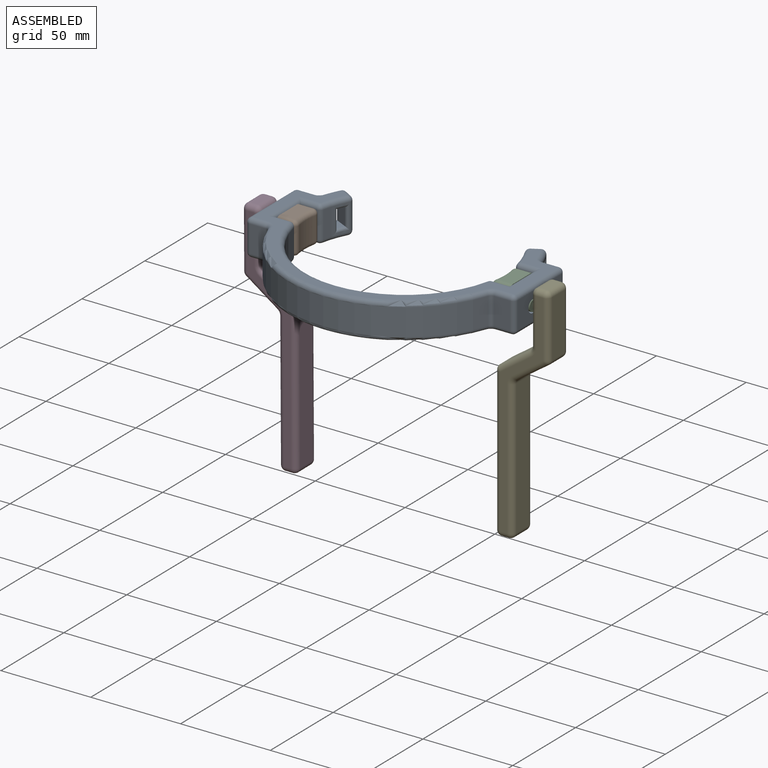
[diagram: assembled view]
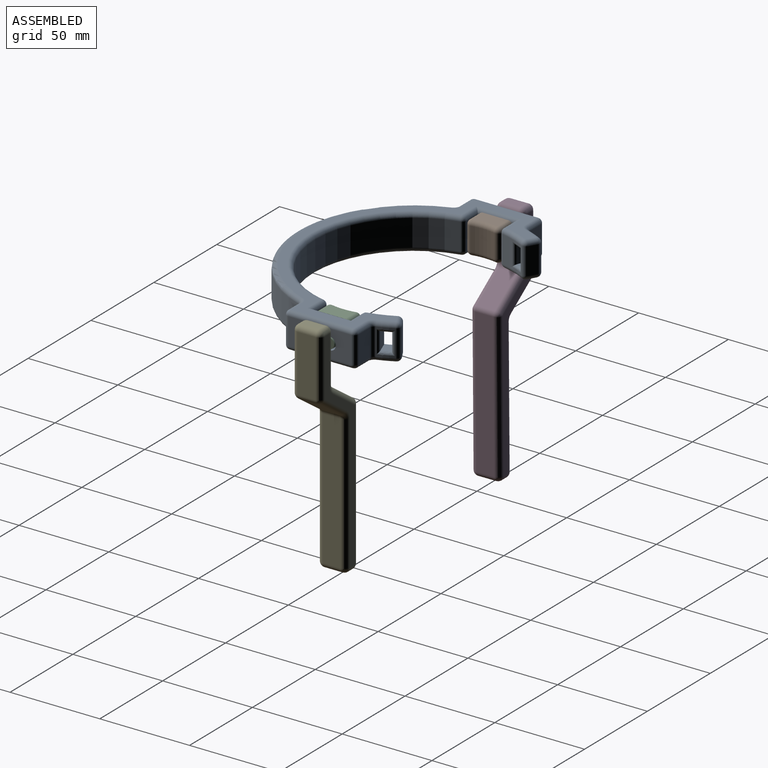
[diagram: assembled view, second angle]
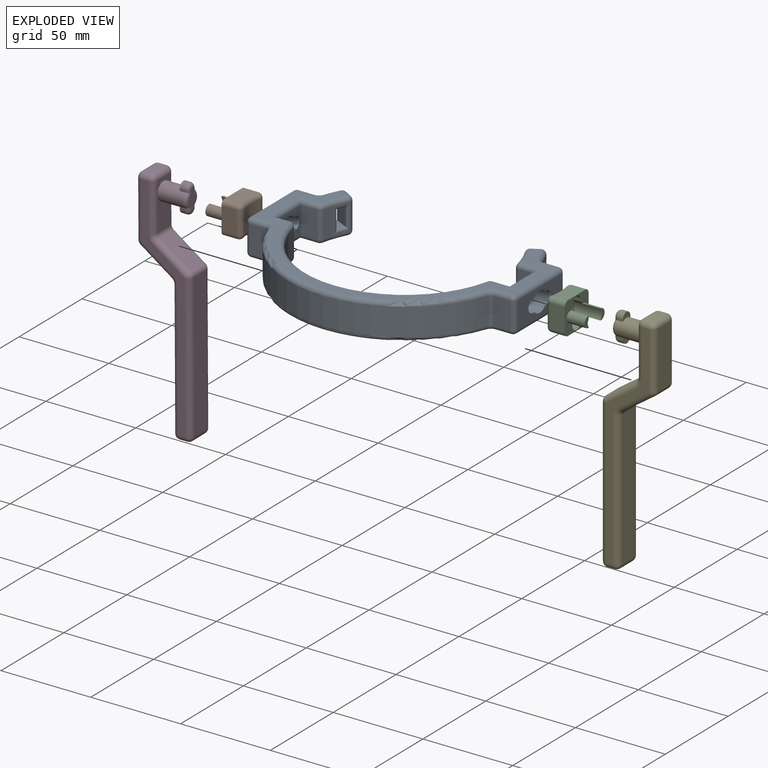
[diagram: exploded view]
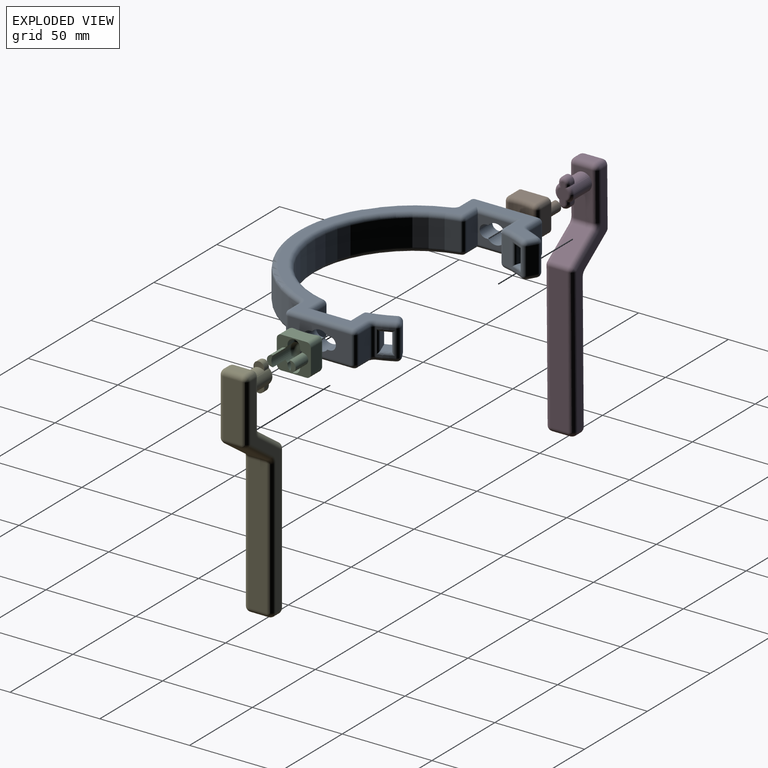
[diagram: exploded view, second angle]
ASSEMBLY  parts=5 mates=4
PART A: 150 faces, bbox 150x20x101.9 mm
  f0: cylinder r=55mm len=15mm, axis (0,-1,0), area 115.1mm2, adj f43,f44,f54,f55,f75,f76,f78
  f1: plane 15x8.86mm, normal (0,0,-1), area 132.9mm2, adj f57,f58,f66,f67
  f2: cylinder r=55mm len=107.37mm, axis (0,-1,0), area 2230.2mm2, adj f25,f28,f29,f102
  f3: plane 145x91.56mm, normal (0,1,0), area 1476.3mm2, adj f25,f27,f30,f31,f33,f34,f38,f43
  f4: plane 145x91.56mm, normal (0,-1,0), area 1476.3mm2, adj f29,f35,f36,f40,f41,f45,f46,f55
  f5: cylinder r=65mm len=122.57mm, axis (0,-1,0), area 2400.4mm2, adj f30,f36,f37,f108
  f6: plane 15x8.86mm, normal (0,0,1), area 132.9mm2, adj f37,f38,f46,f47
  f7: plane 15x8.88mm, normal (0,0,-1), area 133.1mm2, adj f8,f27,f28,f35
  f8: plane 20x15mm, normal (-1,0,0), area 160.9mm2, adj f7,f9,f11,f12,f13,f14,f15,f16
  f9: plane 15x8.88mm, normal (0,0,1), area 133.1mm2, adj f8,f34,f44,f45
  f10: plane 35x15mm, normal (1,0,0), area 385.9mm2, adj f11,f12,f13,f14,f15,f16,f17,f18
  f11: plane 10x1.26mm, normal (0,-1,0), area 12.6mm2, adj f8,f10,f12,f18
  f12: cylinder r=5.5mm len=10mm, axis (1,0,0), area 96.9mm2, adj f8,f10,f11,f13
  f13: plane 10x1.26mm, normal (0,-1,0), area 12.6mm2, adj f8,f10,f12,f14
  f14: cylinder r=3.5mm len=10mm, axis (1,0,0), area 110mm2, adj f8,f10,f13,f15
  f15: plane 10x1.26mm, normal (0,1,0), area 12.6mm2, adj f8,f10,f14,f16
  f16: cylinder r=5.5mm len=10mm, axis (1,0,0), area 96.9mm2, adj f8,f10,f15,f17
  f17: plane 10x1.26mm, normal (0,1,0), area 12.6mm2, adj f8,f10,f16,f18
  f18: cylinder r=3.5mm len=10mm, axis (1,0,0), area 110mm2, adj f8,f10,f11,f17
  f19: plane 15x4.33mm, normal (-0.5,0,-0.87), area 75.1mm2, adj f53,f54,f64,f65
  f20: cylinder r=65mm len=15mm, axis (0,-1,0), area 26.5mm2, adj f59,f64,f67,f70,f71,f72,f73,f74
  f21: plane 8.5x7.59mm, normal (0,-1,0), area 36.7mm2, adj f23,f24,f72,f73,f74,f78
  f22: plane 8.5x7.59mm, normal (0,1,0), area 36.7mm2, adj f23,f24,f71,f72,f73,f75
  f23: plane 10x6.54mm, normal (-0.36,0,-0.93), area 70mm2, adj f21,f22,f72,f75,f76,f78
  f24: plane 10x6.29mm, normal (0.44,0,0.9), area 70mm2, adj f21,f22,f73,f75,f77,f78
  f25: torus R=57.5mm, axis (0,-1,0), area 593.5mm2, adj f2,f3,f26,f100
  f26: sphere r=2.5mm, area 8.4mm2, adj f25,f27,f28
  f27: cylinder r=2.5mm len=11.38mm, axis (-1,0,0), area 38.4mm2, adj f3,f7,f26,f31
  f28: cylinder r=2.5mm len=15mm, axis (0,-1,0), area 50.7mm2, adj f2,f7,f26,f32
  f29: torus R=57.5mm, axis (0,-1,0), area 593.5mm2, adj f2,f4,f32,f104
  f30: torus R=62.5mm, axis (0,-1,0), area 619.6mm2, adj f3,f5,f33,f105
  f31: cylinder r=2.5mm len=25mm, axis (0,0,1), area 85.7mm2, adj f3,f8,f27,f34
  f32: sphere r=2.5mm, area 8.4mm2, adj f28,f29,f35
  f33: torus R=5mm, axis (0,-1,0), area 16.5mm2, adj f3,f30,f37,f38
  f34: cylinder r=2.5mm len=11.38mm, axis (1,0,0), area 38.4mm2, adj f3,f9,f31,f39
  f35: cylinder r=2.5mm len=11.38mm, axis (1,0,0), area 38.4mm2, adj f4,f7,f32,f40
  f36: torus R=62.5mm, axis (0,-1,0), area 619.6mm2, adj f4,f5,f41,f112
  f37: cylinder r=2.5mm len=15mm, axis (0,-1,0), area 46.2mm2, adj f5,f6,f33,f41
  f38: cylinder r=2.5mm len=8.86mm, axis (1,0,0), area 34.8mm2, adj f3,f6,f33,f42
  f39: sphere r=2.5mm, area 8.4mm2, adj f34,f43,f44
  f40: cylinder r=2.5mm len=25mm, axis (0,0,-1), area 85.7mm2, adj f4,f8,f35,f45
  f41: torus R=5mm, axis (0,-1,0), area 16.5mm2, adj f4,f36,f37,f46
  f42: sphere r=2.5mm, area 9.8mm2, adj f38,f47,f48
  f43: torus R=57.5mm, axis (0,-1,0), area 57.3mm2, adj f0,f3,f39,f49
  f44: cylinder r=2.5mm len=15mm, axis (0,-1,0), area 50.7mm2, adj f0,f9,f39,f50
  f45: cylinder r=2.5mm len=11.38mm, axis (-1,0,0), area 38.4mm2, adj f4,f9,f40,f50
  f46: cylinder r=2.5mm len=8.86mm, axis (-1,0,0), area 34.8mm2, adj f4,f6,f41,f51
  f47: cylinder r=2.5mm len=15mm, axis (0,-1,0), area 58.9mm2, adj f6,f10,f42,f51
  f48: cylinder r=2.5mm len=35mm, axis (0,0,-1), area 137.4mm2, adj f3,f10,f42,f52
  f49: sphere r=2.5mm, area 9.5mm2, adj f43,f53,f54
  f50: sphere r=2.5mm, area 8.4mm2, adj f44,f45,f55
  f51: sphere r=2.5mm, area 9.8mm2, adj f46,f47,f56
  f52: sphere r=2.5mm, area 9.8mm2, adj f48,f57,f58
  f53: cylinder r=2.5mm len=5.58mm, axis (-0.87,0,0.5), area 19.7mm2, adj f3,f19,f49,f60
  f54: cylinder r=2.5mm len=15mm, axis (0,-1,0), area 57.2mm2, adj f0,f19,f49,f61,f75,f77,f78
  f55: torus R=57.5mm, axis (0,-1,0), area 57.3mm2, adj f0,f4,f50,f61
  f56: cylinder r=2.5mm len=35mm, axis (0,0,1), area 137.4mm2, adj f4,f10,f51,f62
  f57: cylinder r=2.5mm len=15mm, axis (0,1,0), area 58.9mm2, adj f1,f10,f52,f62
  f58: cylinder r=2.5mm len=8.86mm, axis (-1,0,0), area 34.8mm2, adj f1,f3,f52,f63
  f59: torus R=62.5mm, axis (0,-1,0), area 36.2mm2, adj f3,f20,f60,f63
  f60: sphere r=2.5mm, area 10.1mm2, adj f53,f59,f64
  f61: sphere r=2.5mm, area 9.5mm2, adj f54,f55,f65
  f62: sphere r=2.5mm, area 9.8mm2, adj f56,f57,f66
  f63: torus R=5mm, axis (0,-1,0), area 16.5mm2, adj f3,f58,f59,f67
  f64: cylinder r=2.5mm len=15mm, axis (0,-1,0), area 60.4mm2, adj f19,f20,f60,f68
  f65: cylinder r=2.5mm len=5.58mm, axis (0.87,0,-0.5), area 19.7mm2, adj f4,f19,f61,f68
  f66: cylinder r=2.5mm len=8.86mm, axis (1,0,0), area 34.8mm2, adj f1,f4,f62,f69
  f67: cylinder r=2.5mm len=15mm, axis (0,-1,0), area 46.2mm2, adj f1,f20,f63,f69
  f68: sphere r=2.5mm, area 10.1mm2, adj f64,f65,f70
  f69: torus R=5mm, axis (0,-1,0), area 16.5mm2, adj f4,f66,f67,f70
  f70: torus R=62.5mm, axis (0,-1,0), area 36.2mm2, adj f4,f20,f68,f69
  f71: torus R=63.5mm, axis (0,-1,0), area 15.9mm2, adj f20,f22,f72,f73
  f72: cylinder r=1.5mm len=13mm, axis (0,-1,0), area 26.5mm2, adj f20,f21,f22,f23,f71,f74
  f73: cylinder r=1.5mm len=13mm, axis (0,-1,0), area 26.5mm2, adj f20,f21,f22,f24,f71,f74
  f74: torus R=63.5mm, axis (0,-1,0), area 15.9mm2, adj f20,f21,f72,f73
  f75: torus R=56.5mm, axis (0,-1,0), area 13.9mm2, adj f0,f22,f23,f24,f54,f76,f77
  f76: cylinder r=1.5mm len=13mm, axis (0,-1,0), area 25.7mm2, adj f0,f23,f75,f78
  f77: cylinder r=1.5mm len=12.99mm, axis (0,-1,0), area 25.6mm2, adj f24,f54,f75,f78
  f78: torus R=56.5mm, axis (0,-1,0), area 13.9mm2, adj f0,f21,f23,f24,f54,f76,f77
  f79: cylinder r=55mm len=15mm, axis (0,-1,0), area 115.1mm2, adj f114,f115,f125,f126,f146,f147,f149
  f80: plane 15x8.86mm, normal (0,0,-1), area 132.9mm2, adj f128,f129,f137,f138
  f81: plane 15x8.86mm, normal (0,0,1), area 132.9mm2, adj f108,f109,f117,f118
  f82: plane 15x8.88mm, normal (0,0,-1), area 133.1mm2, adj f83,f101,f102,f107
  f83: plane 20x15mm, normal (1,0,0), area 160.9mm2, adj f82,f84,f86,f87,f88,f89,f90,f91
  f84: plane 15x8.88mm, normal (0,0,1), area 133.1mm2, adj f83,f106,f115,f116
  f85: plane 35x15mm, normal (-1,0,0), area 385.9mm2, adj f86,f87,f88,f89,f90,f91,f92,f93
  f86: plane 10x1.26mm, normal (0,-1,0), area 12.6mm2, adj f83,f85,f87,f93
  f87: cylinder r=5.5mm len=10mm, axis (-1,0,0), area 96.9mm2, adj f83,f85,f86,f88
  f88: plane 10x1.26mm, normal (0,-1,0), area 12.6mm2, adj f83,f85,f87,f89
  f89: cylinder r=3.5mm len=10mm, axis (-1,0,0), area 110mm2, adj f83,f85,f88,f90
  f90: plane 10x1.26mm, normal (0,1,0), area 12.6mm2, adj f83,f85,f89,f91
  f91: cylinder r=5.5mm len=10mm, axis (-1,0,0), area 96.9mm2, adj f83,f85,f90,f92
  f92: plane 10x1.26mm, normal (0,1,0), area 12.6mm2, adj f83,f85,f91,f93
  f93: cylinder r=3.5mm len=10mm, axis (-1,0,0), area 110mm2, adj f83,f85,f86,f92
  f94: plane 15x4.33mm, normal (0.5,0,-0.87), area 75.1mm2, adj f124,f125,f135,f136
  f95: cylinder r=65mm len=15mm, axis (0,-1,0), area 26.5mm2, adj f130,f135,f138,f141,f142,f143,f144,f145
  f96: plane 8.5x7.59mm, normal (0,-1,0), area 36.7mm2, adj f98,f99,f143,f144,f145,f149
  f97: plane 8.5x7.59mm, normal (0,1,0), area 36.7mm2, adj f98,f99,f142,f143,f144,f146
  f98: plane 10x6.54mm, normal (0.36,0,-0.93), area 70mm2, adj f96,f97,f143,f146,f147,f149
  f99: plane 10x6.29mm, normal (-0.44,0,0.9), area 70mm2, adj f96,f97,f144,f146,f148,f149
  f100: sphere r=2.5mm, area 8.4mm2, adj f25,f101,f102
  f101: cylinder r=2.5mm len=11.38mm, axis (1,0,0), area 38.4mm2, adj f3,f82,f100,f103
  f102: cylinder r=2.5mm len=15mm, axis (0,-1,0), area 50.7mm2, adj f2,f82,f100,f104
  f103: cylinder r=2.5mm len=25mm, axis (0,0,1), area 85.7mm2, adj f3,f83,f101,f106
  f104: sphere r=2.5mm, area 8.4mm2, adj f29,f102,f107
  f105: torus R=5mm, axis (0,-1,0), area 16.5mm2, adj f3,f30,f108,f109
  f106: cylinder r=2.5mm len=11.38mm, axis (-1,0,0), area 38.4mm2, adj f3,f84,f103,f110
  f107: cylinder r=2.5mm len=11.38mm, axis (-1,0,0), area 38.4mm2, adj f4,f82,f104,f111
  f108: cylinder r=2.5mm len=15mm, axis (0,-1,0), area 46.2mm2, adj f5,f81,f105,f112
  f109: cylinder r=2.5mm len=8.86mm, axis (-1,0,0), area 34.8mm2, adj f3,f81,f105,f113
  f110: sphere r=2.5mm, area 8.4mm2, adj f106,f114,f115
  f111: cylinder r=2.5mm len=25mm, axis (0,0,-1), area 85.7mm2, adj f4,f83,f107,f116
  f112: torus R=5mm, axis (0,-1,0), area 16.5mm2, adj f4,f36,f108,f117
  f113: sphere r=2.5mm, area 9.8mm2, adj f109,f118,f119
  f114: torus R=57.5mm, axis (0,-1,0), area 57.3mm2, adj f3,f79,f110,f120
  f115: cylinder r=2.5mm len=15mm, axis (0,-1,0), area 50.7mm2, adj f79,f84,f110,f121
  f116: cylinder r=2.5mm len=11.38mm, axis (1,0,0), area 38.4mm2, adj f4,f84,f111,f121
  f117: cylinder r=2.5mm len=8.86mm, axis (1,0,0), area 34.8mm2, adj f4,f81,f112,f122
  f118: cylinder r=2.5mm len=15mm, axis (0,-1,0), area 58.9mm2, adj f81,f85,f113,f122
  f119: cylinder r=2.5mm len=35mm, axis (0,0,-1), area 137.4mm2, adj f3,f85,f113,f123
  f120: sphere r=2.5mm, area 9.5mm2, adj f114,f124,f125
  f121: sphere r=2.5mm, area 8.4mm2, adj f115,f116,f126
  f122: sphere r=2.5mm, area 9.8mm2, adj f117,f118,f127
  f123: sphere r=2.5mm, area 9.8mm2, adj f119,f128,f129
  f124: cylinder r=2.5mm len=5.58mm, axis (0.87,0,0.5), area 19.7mm2, adj f3,f94,f120,f131
  f125: cylinder r=2.5mm len=15mm, axis (0,-1,0), area 57.2mm2, adj f79,f94,f120,f132,f146,f148,f149
  f126: torus R=57.5mm, axis (0,-1,0), area 57.3mm2, adj f4,f79,f121,f132
  f127: cylinder r=2.5mm len=35mm, axis (0,0,1), area 137.4mm2, adj f4,f85,f122,f133
  f128: cylinder r=2.5mm len=15mm, axis (0,1,0), area 58.9mm2, adj f80,f85,f123,f133
  f129: cylinder r=2.5mm len=8.86mm, axis (1,0,0), area 34.8mm2, adj f3,f80,f123,f134
  f130: torus R=62.5mm, axis (0,-1,0), area 36.2mm2, adj f3,f95,f131,f134
  f131: sphere r=2.5mm, area 10.1mm2, adj f124,f130,f135
  f132: sphere r=2.5mm, area 9.5mm2, adj f125,f126,f136
  f133: sphere r=2.5mm, area 9.8mm2, adj f127,f128,f137
  f134: torus R=5mm, axis (0,-1,0), area 16.5mm2, adj f3,f129,f130,f138
  f135: cylinder r=2.5mm len=15mm, axis (0,-1,0), area 60.4mm2, adj f94,f95,f131,f139
  f136: cylinder r=2.5mm len=5.58mm, axis (-0.87,0,-0.5), area 19.7mm2, adj f4,f94,f132,f139
  f137: cylinder r=2.5mm len=8.86mm, axis (-1,0,0), area 34.8mm2, adj f4,f80,f133,f140
  f138: cylinder r=2.5mm len=15mm, axis (0,-1,0), area 46.2mm2, adj f80,f95,f134,f140
  f139: sphere r=2.5mm, area 10.1mm2, adj f135,f136,f141
  f140: torus R=5mm, axis (0,-1,0), area 16.5mm2, adj f4,f137,f138,f141
  f141: torus R=62.5mm, axis (0,-1,0), area 36.2mm2, adj f4,f95,f139,f140
  f142: torus R=63.5mm, axis (0,-1,0), area 15.9mm2, adj f95,f97,f143,f144
  f143: cylinder r=1.5mm len=13mm, axis (0,-1,0), area 26.5mm2, adj f95,f96,f97,f98,f142,f145
  f144: cylinder r=1.5mm len=13mm, axis (0,-1,0), area 26.5mm2, adj f95,f96,f97,f99,f142,f145
  f145: torus R=63.5mm, axis (0,-1,0), area 15.9mm2, adj f95,f96,f143,f144
  f146: torus R=56.5mm, axis (0,-1,0), area 13.9mm2, adj f79,f97,f98,f99,f125,f147,f148
  f147: cylinder r=1.5mm len=13mm, axis (0,-1,0), area 25.7mm2, adj f79,f98,f146,f149
  f148: cylinder r=1.5mm len=12.99mm, axis (0,-1,0), area 25.6mm2, adj f99,f125,f146,f149
  f149: torus R=56.5mm, axis (0,-1,0), area 13.9mm2, adj f79,f96,f98,f99,f125,f147,f148
PART B: 43 faces, bbox 20.7x19x18 mm
  f0: plane 19x18mm, normal (-1,0,0), area 178.8mm2, adj f1,f2,f3,f4,f5,f6,f7,f8
  f1: plane 14x8.18mm, normal (0,0,-1), area 108.2mm2, adj f0,f28,f31,f34
  f2: plane 14x8.18mm, normal (0,0,1), area 108.2mm2, adj f0,f23,f24,f25
  f3: plane 13x8.18mm, normal (0,-1,0), area 106.3mm2, adj f0,f23,f28,f29
  f4: plane 13x8.18mm, normal (0,1,0), area 106.3mm2, adj f0,f25,f30,f31
  f5: plane 4.5x0.76mm, normal (0,-1,0), area 3.4mm2, adj f0,f6,f12,f39
  f6: cylinder r=5.5mm len=14.5mm, axis (-1,0,0), area 107.1mm2, adj f0,f5,f7,f14,f15,f17,f41
  f7: plane 4.5x0.76mm, normal (0,-1,0), area 3.4mm2, adj f0,f6,f8,f42
  f8: cylinder r=3.5mm len=7mm, axis (-1,0,0), area 49.5mm2, adj f0,f7,f9,f40
  f9: plane 4.5x0.76mm, normal (0,1,0), area 3.4mm2, adj f0,f8,f10,f38
  f10: cylinder r=5.5mm len=14.5mm, axis (-1,0,0), area 107.1mm2, adj f0,f9,f11,f19,f20,f21,f36
  f11: plane 4.5x0.76mm, normal (0,1,0), area 3.4mm2, adj f0,f10,f12,f35
  f12: cylinder r=3.5mm len=7mm, axis (-1,0,0), area 49.5mm2, adj f0,f5,f11,f37
  f13: plane 12x6mm, normal (-1,0,0), area 39.6mm2, adj f35,f36,f37,f38,f39,f40,f41,f42
  f14: plane 10x0.39mm, normal (0,0,-1), area 3.9mm2, adj f0,f6,f16,f17
  f15: plane 10x0.39mm, normal (0,0,1), area 3.9mm2, adj f0,f6,f16,f17
  f16: cylinder r=3mm len=10mm, axis (1,0,0), area 94.2mm2, adj f0,f14,f15,f17
  f17: plane 6x3.39mm, normal (-1,0,0), area 12.9mm2, adj f6,f14,f15,f16
  f18: cylinder r=3mm len=10mm, axis (1,0,0), area 94.2mm2, adj f0,f19,f20,f21
  f19: plane 10x0.39mm, normal (0,0,1), area 3.9mm2, adj f0,f10,f18,f21
  f20: plane 10x0.39mm, normal (0,0,-1), area 3.9mm2, adj f0,f10,f18,f21
  f21: plane 6x3.39mm, normal (-1,0,0), area 12.9mm2, adj f10,f18,f19,f20
  f22: cylinder r=33.99mm len=13.04mm, axis (0,0,1), area 170.6mm2, adj f24,f29,f30,f34
  f23: cylinder r=2.5mm len=8.18mm, axis (1,0,0), area 32.1mm2, adj f0,f2,f3,f26
  f24: torus R=36.49mm, axis (0,0,-1), area 52.9mm2, adj f2,f22,f26,f27
  f25: cylinder r=2.5mm len=8.18mm, axis (-1,0,0), area 32.1mm2, adj f0,f2,f4,f27
  f26: sphere r=2.5mm, area 11mm2, adj f23,f24,f29
  f27: sphere r=2.5mm, area 11mm2, adj f24,f25,f30
  f28: cylinder r=2.5mm len=8.18mm, axis (-1,0,0), area 32.1mm2, adj f0,f1,f3,f32
  f29: cylinder r=2.5mm len=13mm, axis (0,0,1), area 57.3mm2, adj f3,f22,f26,f32
  f30: cylinder r=2.5mm len=13mm, axis (0,0,1), area 57.3mm2, adj f4,f22,f27,f33
  f31: cylinder r=2.5mm len=8.18mm, axis (1,0,0), area 32.1mm2, adj f0,f1,f4,f33
  f32: sphere r=2.5mm, area 11mm2, adj f28,f29,f34
  f33: sphere r=2.5mm, area 11mm2, adj f30,f31,f34
  f34: torus R=36.49mm, axis (0,0,-1), area 52.9mm2, adj f1,f22,f32,f33
  f35: cylinder r=2.5mm len=2.5mm, axis (0,0,1), area 4.8mm2, adj f11,f13,f36,f37
  f36: torus R=3mm, axis (-1,0,0), area 34.9mm2, adj f10,f13,f35,f38
  f37: torus R=1mm, axis (-1,0,0), area 32mm2, adj f12,f13,f35,f39
  f38: cylinder r=2.5mm len=2.5mm, axis (0,0,1), area 4.8mm2, adj f9,f13,f36,f40
  f39: cylinder r=2.5mm len=2.5mm, axis (0,0,-1), area 4.8mm2, adj f5,f13,f37,f41
  f40: torus R=1mm, axis (-1,0,0), area 32mm2, adj f8,f13,f38,f42
  f41: torus R=3mm, axis (-1,0,0), area 34.9mm2, adj f6,f13,f39,f42
  f42: cylinder r=2.5mm len=2.5mm, axis (0,0,-1), area 4.8mm2, adj f7,f13,f40,f41
PART C: same geometry as B
PART D: 69 faces, bbox 130x16x30 mm
  f0: plane 10x7mm, normal (0,0,-1), area 30.7mm2, adj f11,f47,f48,f57
  f1: plane 10x4mm, normal (-1,0,0), area 40mm2, adj f36,f37,f48,f49
  f2: plane 19.44x10mm, normal (0,0,-1), area 155.1mm2, adj f11,f47,f56,f57
  f3: plane 17.44x12.21mm, normal (-0.82,0,-0.57), area 212.9mm2, adj f46,f55,f56,f60
  f4: plane 80.43x10mm, normal (0,0,-1), area 804.3mm2, adj f44,f45,f54,f55
  f5: plane 10x4mm, normal (1,0,0), area 40mm2, adj f34,f35,f43,f44
  f6: plane 75.23x10mm, normal (0,0,1), area 752.3mm2, adj f24,f25,f33,f34
  f7: plane 17.44x12.21mm, normal (0.82,0,0.57), area 212.9mm2, adj f21,f24,f27,f28
  f8: plane 31.64x10mm, normal (0,0,1), area 316.4mm2, adj f26,f27,f37,f38
  f9: plane 124x24mm, normal (0,-1,0), area 540.6mm2, adj f28,f29,f33,f38,f43,f49,f54,f57
  f10: plane 124x24mm, normal (0,1,0), area 540.6mm2, adj f21,f22,f25,f26,f35,f36,f45,f46
  f11: cylinder r=5mm len=14mm, axis (0,0,1), area 401.2mm2, adj f0,f2,f12,f13,f14,f16,f17,f19
  f12: plane 6x4mm, normal (0,0,1), area 16mm2, adj f11,f14,f15,f16
  f13: plane 6x4mm, normal (0,0,1), area 16mm2, adj f11,f17,f18,f19
  f14: plane 3x1mm, normal (0,-1,0), area 3mm2, adj f11,f12,f15,f68
  f15: cylinder r=3mm len=6mm, axis (0,0,1), area 28.3mm2, adj f12,f14,f16,f67
  f16: plane 3x1mm, normal (0,1,0), area 3mm2, adj f11,f12,f15,f65
  f17: plane 3x1mm, normal (0,1,0), area 3mm2, adj f11,f13,f18,f61
  f18: cylinder r=3mm len=6mm, axis (0,0,1), area 28.3mm2, adj f13,f17,f19,f62
  f19: plane 3x1mm, normal (0,-1,0), area 3mm2, adj f11,f13,f18,f64
  f20: plane 12x6mm, normal (0,0,-1), area 39.6mm2, adj f61,f62,f63,f64,f65,f66,f67,f68
  f21: cylinder r=3mm len=19.16mm, axis (-0.57,0,0.82), area 100.3mm2, adj f7,f10,f22,f23
  f22: torus R=6mm, axis (0,-1,0), area 18.5mm2, adj f10,f21,f24,f25
  f23: sphere r=3mm, area 8.6mm2, adj f21,f26,f27
  f24: cylinder r=3mm len=10mm, axis (0,-1,0), area 28.8mm2, adj f6,f7,f22,f29
  f25: cylinder r=3mm len=75.23mm, axis (-1,0,0), area 354.5mm2, adj f6,f10,f22,f30
  f26: cylinder r=3mm len=31.64mm, axis (-1,0,0), area 149.1mm2, adj f8,f10,f23,f31
  f27: cylinder r=3mm len=10mm, axis (0,1,0), area 28.8mm2, adj f7,f8,f23,f32
  f28: cylinder r=3mm len=19.16mm, axis (0.57,0,-0.82), area 100.3mm2, adj f7,f9,f29,f32
  f29: torus R=6mm, axis (0,-1,0), area 18.5mm2, adj f9,f24,f28,f33
  f30: sphere r=3mm, area 14.1mm2, adj f25,f34,f35
  f31: sphere r=3mm, area 14.1mm2, adj f26,f36,f37
  f32: sphere r=3mm, area 8.6mm2, adj f27,f28,f38
  f33: cylinder r=3mm len=75.23mm, axis (1,0,0), area 354.5mm2, adj f6,f9,f29,f39
  f34: cylinder r=3mm len=10mm, axis (0,1,0), area 47.1mm2, adj f5,f6,f30,f39
  f35: cylinder r=3mm len=4mm, axis (0,0,1), area 18.8mm2, adj f5,f10,f30,f40
  f36: cylinder r=3mm len=4mm, axis (0,0,-1), area 18.8mm2, adj f1,f10,f31,f41
  f37: cylinder r=3mm len=10mm, axis (0,1,0), area 47.1mm2, adj f1,f8,f31,f42
  f38: cylinder r=3mm len=31.64mm, axis (1,0,0), area 149.1mm2, adj f8,f9,f32,f42
  f39: sphere r=3mm, area 14.1mm2, adj f33,f34,f43
  f40: sphere r=3mm, area 14.1mm2, adj f35,f44,f45
  f41: sphere r=3mm, area 14.1mm2, adj f36,f47,f48
  f42: sphere r=3mm, area 14.1mm2, adj f37,f38,f49
  f43: cylinder r=3mm len=4mm, axis (0,0,-1), area 18.8mm2, adj f5,f9,f39,f50
  f44: cylinder r=3mm len=10mm, axis (0,1,0), area 47.1mm2, adj f4,f5,f40,f50
  f45: cylinder r=3mm len=80.43mm, axis (1,0,0), area 379mm2, adj f4,f10,f40,f51
  f46: cylinder r=3mm len=19.16mm, axis (0.57,0,-0.82), area 100.3mm2, adj f3,f10,f51,f52
  f47: cylinder r=3mm len=26.44mm, axis (1,0,0), area 124.6mm2, adj f0,f2,f10,f41,f52
  f48: cylinder r=3mm len=10mm, axis (0,1,0), area 47.1mm2, adj f0,f1,f41,f53
  f49: cylinder r=3mm len=4mm, axis (0,0,1), area 18.8mm2, adj f1,f9,f42,f53
  f50: sphere r=3mm, area 14.1mm2, adj f43,f44,f54
  f51: sphere r=3mm, area 8.6mm2, adj f45,f46,f55
  f52: torus R=6mm, axis (0,-1,0), area 18.5mm2, adj f10,f46,f47,f56
  f53: sphere r=3mm, area 14.1mm2, adj f48,f49,f57
  f54: cylinder r=3mm len=80.43mm, axis (-1,0,0), area 379mm2, adj f4,f9,f50,f58
  f55: cylinder r=3mm len=10mm, axis (0,1,0), area 28.8mm2, adj f3,f4,f51,f58
  f56: cylinder r=3mm len=10mm, axis (0,-1,0), area 28.8mm2, adj f2,f3,f52,f59
  f57: cylinder r=3mm len=26.44mm, axis (-1,0,0), area 124.6mm2, adj f0,f2,f9,f53,f59
  f58: sphere r=3mm, area 8.6mm2, adj f54,f55,f60
  f59: torus R=6mm, axis (0,-1,0), area 18.5mm2, adj f9,f56,f57,f60
  f60: cylinder r=3mm len=19.16mm, axis (-0.57,0,0.82), area 100.3mm2, adj f3,f9,f58,f59
  f61: cylinder r=2mm len=2.17mm, axis (-1,0,0), area 4.4mm2, adj f17,f20,f62,f63
  f62: torus R=1mm, axis (0,0,-1), area 22.4mm2, adj f18,f20,f61,f64
  f63: torus R=3mm, axis (0,0,-1), area 27.1mm2, adj f11,f20,f61,f65
  f64: cylinder r=2mm len=2.17mm, axis (1,0,0), area 4.4mm2, adj f19,f20,f62,f66
  f65: cylinder r=2mm len=2.17mm, axis (-1,0,0), area 4.4mm2, adj f16,f20,f63,f67
  f66: torus R=3mm, axis (0,0,-1), area 27.1mm2, adj f11,f20,f64,f68
  f67: torus R=1mm, axis (0,0,-1), area 22.4mm2, adj f15,f20,f65,f68
  f68: cylinder r=2mm len=2.17mm, axis (1,0,0), area 4.4mm2, adj f14,f20,f66,f67
PART E: same geometry as D
PLACE A rot(axis=(1,0,0),90deg) t=(0,0,0)mm
PLACE B t=(-65,0,0)mm
PLACE C rot(axis=(0,1,0),180deg) t=(65,0,0)mm
PLACE D rot(axis=(-0.71,0,0.71),179.7deg) t=(-85.5,0,0)mm
PLACE E rot(axis=(0,1,0),90deg) t=(85.5,0,0)mm
MATE planar C.f6 <-> A.f12  axis (1,0,0) through (65,0,0)mm
MATE planar B.f6 <-> A.f87  axis (-1,0,0) through (-65,0,0)mm
MATE planar E.f2 <-> A.f12  axis (-1,0,0) through (75.5,0,-11.64)mm
MATE planar D.f2 <-> A.f87  axis (1,0,0) through (-75.5,0.09,-11.64)mm
